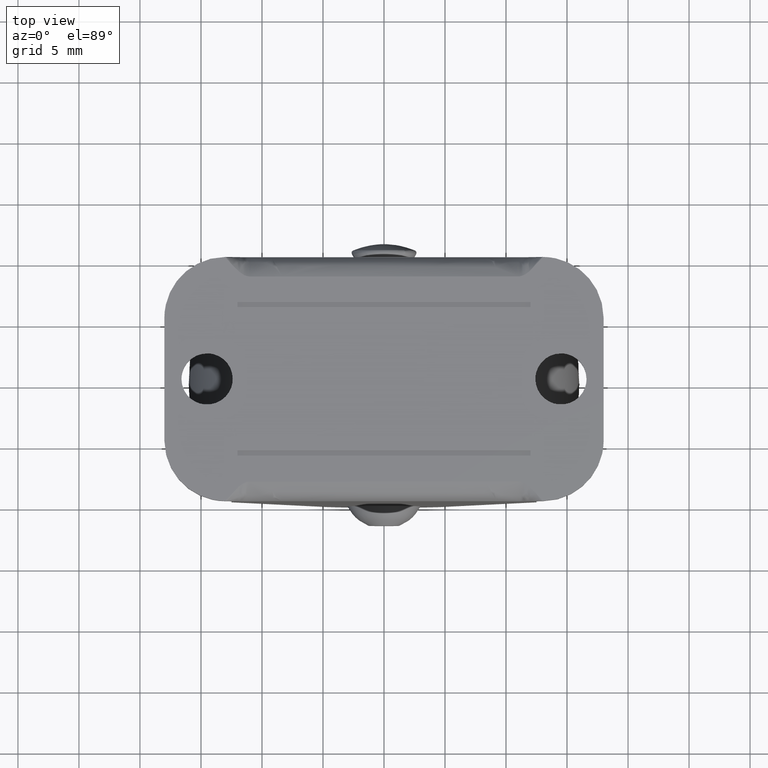
[diagram: clean part render]
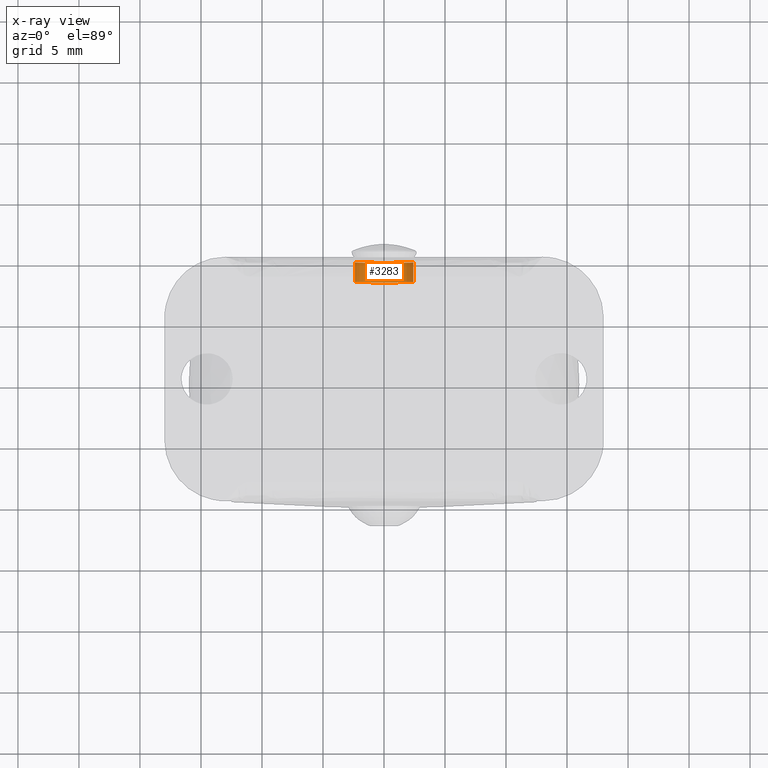
[diagram: x-ray — body ghosted, one internal face saturated and labeled with its STEP entity id]
A machine part, top view, then the same camera in x-ray: the body is ghosted and one INTERNAL B-rep face — a face not visible from any outside direction — is saturated and labeled: STEP entity #3283.
In plain terms, the highlighted face is a freeform B-spline surface patch.
Its self-contained STEP definition (entity closure, byte-faithful):
#3177=CARTESIAN_POINT('',(-2.379018846216792,10.040000000000003,0.318650113819946));
#3178=CARTESIAN_POINT('',(-2.381126781753356,10.040000000000004,0.300916275202228));
#3179=CARTESIAN_POINT('',(-2.391330277076653,10.040000000000003,0.215075348731146));
#3180=CARTESIAN_POINT('',(-2.395523516212480,10.039999999999999,0.146516494883657));
#3181=CARTESIAN_POINT('',(-2.542040011096137,10.040000000000003,-2.249007021328823));
#3182=CARTESIAN_POINT('',(-0.146516494883657,10.039999999999999,-2.395523516212480));
#3183=CARTESIAN_POINT('',(2.249007021328823,10.040000000000003,-2.542040011096137));
#3184=CARTESIAN_POINT('',(2.396577246098280,10.040000000000003,-0.129288163539972));
#3185=CARTESIAN_POINT('',(2.397624716557421,10.040000000000006,-0.112162172917534));
#3186=CARTESIAN_POINT('',(-2.379018846216792,8.359000000000000,0.318650113819946));
#3187=CARTESIAN_POINT('',(-2.381126781753356,8.359000000000000,0.300916275202228));
#3188=CARTESIAN_POINT('',(-2.391330277076653,8.358999999999998,0.215075348731146));
#3189=CARTESIAN_POINT('',(-2.395523516212480,8.358999999999998,0.146516494883657));
#3190=CARTESIAN_POINT('',(-2.542040011096137,8.358999999999998,-2.249007021328823));
#3191=CARTESIAN_POINT('',(-0.146516494883657,8.358999999999998,-2.395523516212480));
#3192=CARTESIAN_POINT('',(2.249007021328823,8.358999999999998,-2.542040011096137));
#3193=CARTESIAN_POINT('',(2.396577246098280,8.358999999999996,-0.129288163539972));
#3194=CARTESIAN_POINT('',(2.397624716557421,8.358999999999998,-0.112162172917534));
#3202=(BOUNDED_SURFACE()B_SPLINE_SURFACE(2,1,((#3177,#3186),(#3178,#3187),(#3179,#3188),(#3180,#3189),(#3181,#3190),(#3182,#3191),(#3183,#3192),(#3184,#3193),(#3185,#3194)),.UNSPECIFIED.,.F.,.F.,.U.)B_SPLINE_SURFACE_WITH_KNOTS((3,1,2,2,1,3),(2,2),(0.0,0.040559815976775,0.199617823928044,4.176068022709755,8.152518221491466,8.193082990442560),(0.0,1.0),.UNSPECIFIED.)GEOMETRIC_REPRESENTATION_ITEM()RATIONAL_B_SPLINE_SURFACE(((0.972008777618629,0.972008777618629),(0.974757289206878,0.974757289206878),(0.988284271247462,0.988284271247462),(1.0,1.0),(0.707106781186548,0.707106781186548),(1.0,1.0),(0.707106781186548,0.707106781186548),(1.002987877416936,1.002987877416936),(1.005975754833872,1.005975754833872)))REPRESENTATION_ITEM('')SURFACE());
#3203=CARTESIAN_POINT('',(-2.383222863263522,8.400000000000002,0.283282163254268));
#3204=VERTEX_POINT('',#3203);
#3205=CARTESIAN_POINT('',(0.0,8.400000000000000,-2.400000000000000));
#3206=VERTEX_POINT('',#3205);
#3207=CARTESIAN_POINT('',(-2.383222863263522,8.400000000000002,0.283282163254268));
#3208=CARTESIAN_POINT('',(-2.400000000000000,8.400000000000000,0.142137887243457));
#3209=CARTESIAN_POINT('',(-2.400000000000000,8.400000000000000,0.0));
#3210=CARTESIAN_POINT('',(-2.400000000000000,8.400000000000000,-2.400000000000000));
#3211=CARTESIAN_POINT('',(0.0,8.400000000000000,-2.400000000000000));
#3219=(BOUNDED_CURVE()B_SPLINE_CURVE(2,(#3207,#3208,#3209,#3210,#3211),.UNSPECIFIED.,.F.,.U.)B_SPLINE_CURVE_WITH_KNOTS((3,2,3),(0.729562473504575,0.750000000000000,1.0),.UNSPECIFIED.)CURVE()GEOMETRIC_REPRESENTATION_ITEM()RATIONAL_B_SPLINE_CURVE((0.956026754166189,0.976055948320679,1.0,0.707106781186547,1.0))REPRESENTATION_ITEM(''));
#3220=EDGE_CURVE('',#3204,#3206,#3219,.T.);
#3221=ORIENTED_EDGE('',*,*,#3220,.T.);
#3222=CARTESIAN_POINT('',(2.395523774300238,8.399999999999817,-0.146512275064133));
#3223=VERTEX_POINT('',#3222);
#3224=CARTESIAN_POINT('',(0.0,8.400000000000000,-2.400000000000000));
#3225=CARTESIAN_POINT('',(2.257698545036147,8.400000000000000,-2.400000000000000));
#3226=CARTESIAN_POINT('',(2.395523774300238,8.399999999999817,-0.146512275064133));
#3234=(BOUNDED_CURVE()B_SPLINE_CURVE(2,(#3224,#3225,#3226),.UNSPECIFIED.,.F.,.U.)B_SPLINE_CURVE_WITH_KNOTS((3,3),(0.0,0.239333266190760),.UNSPECIFIED.)CURVE()GEOMETRIC_REPRESENTATION_ITEM()RATIONAL_B_SPLINE_CURVE((1.0,0.719603637185006,0.976072693094186))REPRESENTATION_ITEM(''));
#3235=EDGE_CURVE('',#3206,#3223,#3234,.T.);
#3236=ORIENTED_EDGE('',*,*,#3235,.T.);
#3237=CARTESIAN_POINT('',(2.395523771108082,10.0,-0.146512327258417));
#3238=VERTEX_POINT('',#3237);
#3239=CARTESIAN_POINT('',(2.395523771108082,10.0,-0.146512327258417));
#3240=CARTESIAN_POINT('',(2.395523774300238,8.399999999999817,-0.146512275064133));
#3241=QUASI_UNIFORM_CURVE('',1,(#3239,#3240),.UNSPECIFIED.,.F.,.U.);
#3242=EDGE_CURVE('',#3238,#3223,#3241,.T.);
#3243=ORIENTED_EDGE('',*,*,#3242,.F.);
#3244=CARTESIAN_POINT('',(0.0,10.0,-2.400000000000000));
#3245=VERTEX_POINT('',#3244);
#3246=CARTESIAN_POINT('',(0.0,10.0,-2.400000000000000));
#3247=CARTESIAN_POINT('',(2.257698495752921,10.0,-2.399999999999999));
#3248=CARTESIAN_POINT('',(2.395523771108082,10.0,-0.146512327258417));
#3256=(BOUNDED_CURVE()B_SPLINE_CURVE(2,(#3246,#3247,#3248),.UNSPECIFIED.,.F.,.U.)B_SPLINE_CURVE_WITH_KNOTS((3,3),(0.500000000000000,0.739333262431264),.UNSPECIFIED.)CURVE()GEOMETRIC_REPRESENTATION_ITEM()RATIONAL_B_SPLINE_CURVE((1.0,0.719603641589529,0.976072685036850))REPRESENTATION_ITEM(''));
#3257=EDGE_CURVE('',#3245,#3238,#3256,.T.);
#3258=ORIENTED_EDGE('',*,*,#3257,.F.);
#3259=CARTESIAN_POINT('',(-2.383222863263522,10.0,0.283282163254268));
#3260=VERTEX_POINT('',#3259);
#3261=CARTESIAN_POINT('',(-2.383222863263522,10.0,0.283282163254268));
#3262=CARTESIAN_POINT('',(-2.400000000000001,10.0,0.142137887243457));
#3263=CARTESIAN_POINT('',(-2.400000000000000,10.0,0.0));
#3264=CARTESIAN_POINT('',(-2.400000000000000,10.0,-2.400000000000000));
#3265=CARTESIAN_POINT('',(0.0,10.0,-2.400000000000000));
#3273=(BOUNDED_CURVE()B_SPLINE_CURVE(2,(#3261,#3262,#3263,#3264,#3265),.UNSPECIFIED.,.F.,.U.)B_SPLINE_CURVE_WITH_KNOTS((3,2,3),(0.229562473504575,0.250000000000000,0.500000000000000),.UNSPECIFIED.)CURVE()GEOMETRIC_REPRESENTATION_ITEM()RATIONAL_B_SPLINE_CURVE((0.956026754166189,0.976055948320679,1.0,0.707106781186547,1.0))REPRESENTATION_ITEM(''));
#3274=EDGE_CURVE('',#3260,#3245,#3273,.T.);
#3275=ORIENTED_EDGE('',*,*,#3274,.F.);
#3276=CARTESIAN_POINT('',(-2.383222863263522,10.0,0.283282163254268));
#3277=CARTESIAN_POINT('',(-2.383222863263522,8.400000000000002,0.283282163254268));
#3278=QUASI_UNIFORM_CURVE('',1,(#3276,#3277),.UNSPECIFIED.,.F.,.U.);
#3279=EDGE_CURVE('',#3260,#3204,#3278,.T.);
#3280=ORIENTED_EDGE('',*,*,#3279,.T.);
#3281=EDGE_LOOP('',(#3221,#3236,#3243,#3258,#3275,#3280));
#3282=FACE_OUTER_BOUND('',#3281,.T.);
#3283=ADVANCED_FACE('',(#3282),#3202,.F.);